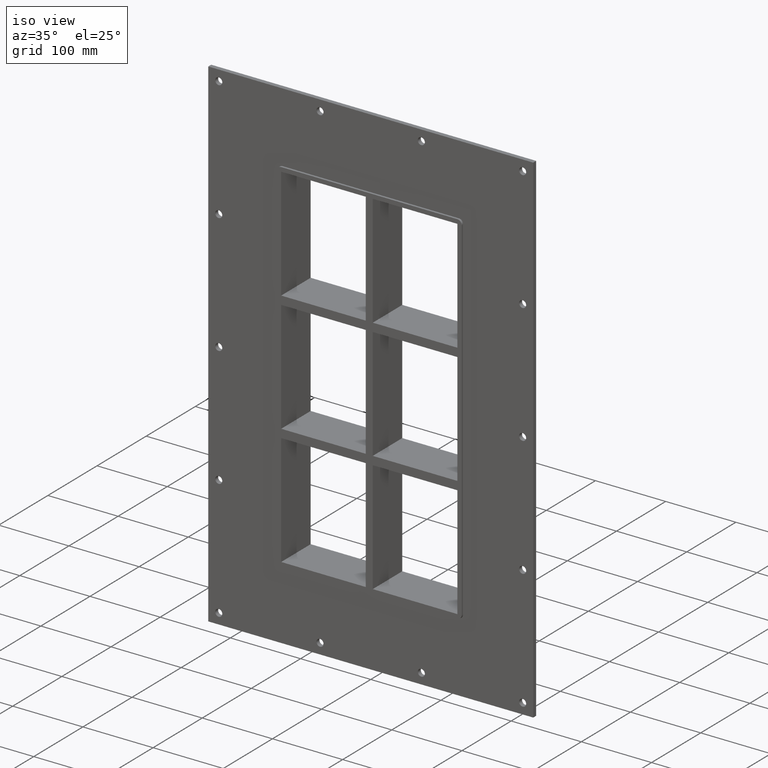
[diagram: clean part render]
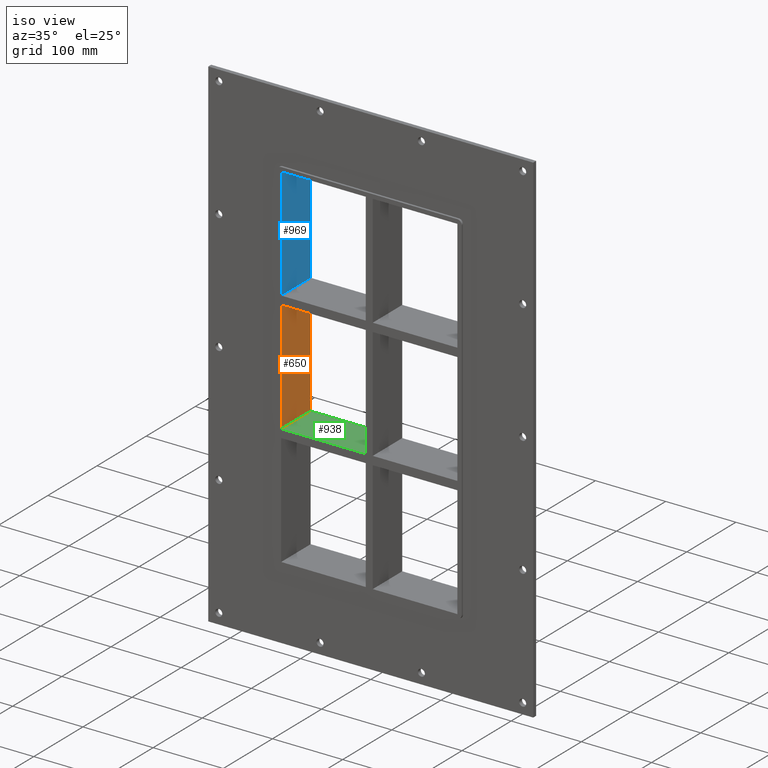
[diagram: same view with three faces highlighted in distinct colors, each labeled with its STEP entity id]
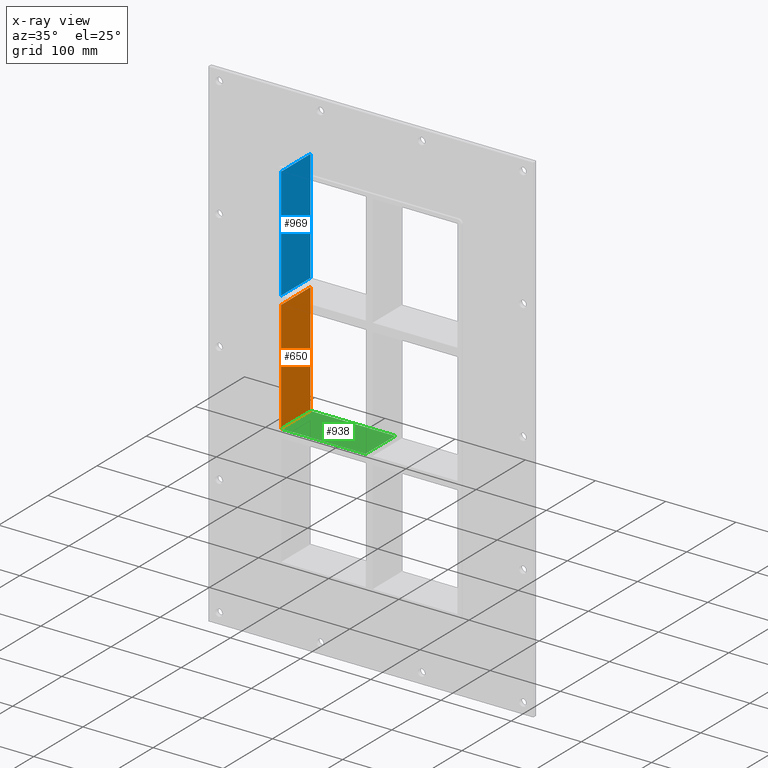
[diagram: x-ray of the same camera — body ghosted, the three highlighted faces saturated]
A machine part, iso view with three faces highlighted in distinct colors.
The next image is the same camera in x-ray (body ghosted, the three faces saturated) — at least one of them is partly hidden behind the body in this view.
Their STEP definitions:

[orange] entity #650 — the highlighted planar face has unit normal (-1, 0, 0).
#595=CARTESIAN_POINT('',(-125.4999999999997,-3.0,79.749999999990536));
#596=VERTEX_POINT('',#595);
#603=CARTESIAN_POINT('',(-125.4999999999997,57.0,79.749999999990536));
#604=VERTEX_POINT('',#603);
#605=CARTESIAN_POINT('',(-125.5,57.000000000000007,79.749999999990536));
#606=DIRECTION('',(0.0,-1.0,0.0));
#607=VECTOR('',#606,60.000000000000007);
#608=LINE('',#605,#607);
#609=EDGE_CURVE('',#604,#596,#608,.T.);
#620=CARTESIAN_POINT('',(-125.5,0.0,-251.25000000000003));
#621=DIRECTION('',(-1.0,0.0,0.0));
#622=DIRECTION('',(0.0,0.0,1.0));
#623=AXIS2_PLACEMENT_3D('',#620,#621,#622);
#624=PLANE('',#623);
#625=ORIENTED_EDGE('',*,*,#609,.T.);
#626=CARTESIAN_POINT('',(-125.4999999999997,-3.0,-79.749999999999943));
#627=VERTEX_POINT('',#626);
#628=CARTESIAN_POINT('',(-125.5,-3.0,-79.749999999999943));
#629=DIRECTION('',(0.0,0.0,1.0));
#630=VECTOR('',#629,159.49999999999051);
#631=LINE('',#628,#630);
#632=EDGE_CURVE('',#627,#596,#631,.T.);
#633=ORIENTED_EDGE('',*,*,#632,.F.);
#634=CARTESIAN_POINT('',(-125.4999999999997,57.0,-79.749999999999943));
#635=VERTEX_POINT('',#634);
#636=CARTESIAN_POINT('',(-125.5,-3.0,-79.749999999999929));
#637=DIRECTION('',(0.0,1.0,0.0));
#638=VECTOR('',#637,60.000000000000007);
#639=LINE('',#636,#638);
#640=EDGE_CURVE('',#627,#635,#639,.T.);
#641=ORIENTED_EDGE('',*,*,#640,.T.);
#642=CARTESIAN_POINT('',(-125.5,57.0,79.74999999999055));
#643=DIRECTION('',(0.0,0.0,-1.0));
#644=VECTOR('',#643,159.49999999999051);
#645=LINE('',#642,#644);
#646=EDGE_CURVE('',#604,#635,#645,.T.);
#647=ORIENTED_EDGE('',*,*,#646,.F.);
#648=EDGE_LOOP('',(#625,#633,#641,#647));
#649=FACE_OUTER_BOUND('',#648,.T.);
#650=ADVANCED_FACE('',(#649),#624,.F.);

[blue] entity #969 — the highlighted planar face has unit normal (-1, 0, 0).
#555=CARTESIAN_POINT('',(-125.4999999999997,57.0,91.750000000000085));
#556=VERTEX_POINT('',#555);
#563=CARTESIAN_POINT('',(-125.4999999999997,-3.0,91.750000000000085));
#564=VERTEX_POINT('',#563);
#565=CARTESIAN_POINT('',(-125.5,-3.0,91.750000000000085));
#566=DIRECTION('',(0.0,1.0,0.0));
#567=VECTOR('',#566,60.000000000000007);
#568=LINE('',#565,#567);
#569=EDGE_CURVE('',#564,#556,#568,.T.);
#939=CARTESIAN_POINT('',(-125.5,0.0,-251.25000000000003));
#940=DIRECTION('',(-1.0,0.0,0.0));
#941=DIRECTION('',(0.0,0.0,1.0));
#942=AXIS2_PLACEMENT_3D('',#939,#940,#941);
#943=PLANE('',#942);
#944=ORIENTED_EDGE('',*,*,#569,.T.);
#945=CARTESIAN_POINT('',(-125.5,57.0,251.24999999999997));
#946=VERTEX_POINT('',#945);
#947=CARTESIAN_POINT('',(-125.5,57.0,251.25));
#948=DIRECTION('',(0.0,0.0,-1.0));
#949=VECTOR('',#948,159.49999999999989);
#950=LINE('',#947,#949);
#951=EDGE_CURVE('',#946,#556,#950,.T.);
#952=ORIENTED_EDGE('',*,*,#951,.F.);
#953=CARTESIAN_POINT('',(-125.5,-3.0,251.24999999999997));
#954=VERTEX_POINT('',#953);
#955=CARTESIAN_POINT('',(-125.5,-3.0,251.25));
#956=DIRECTION('',(0.0,1.0,0.0));
#957=VECTOR('',#956,60.0);
#958=LINE('',#955,#957);
#959=EDGE_CURVE('',#954,#946,#958,.T.);
#960=ORIENTED_EDGE('',*,*,#959,.F.);
#961=CARTESIAN_POINT('',(-125.5,-3.0,91.750000000000099));
#962=DIRECTION('',(0.0,0.0,1.0));
#963=VECTOR('',#962,159.49999999999989);
#964=LINE('',#961,#963);
#965=EDGE_CURVE('',#564,#954,#964,.T.);
#966=ORIENTED_EDGE('',*,*,#965,.F.);
#967=EDGE_LOOP('',(#944,#952,#960,#966));
#968=FACE_OUTER_BOUND('',#967,.T.);
#969=ADVANCED_FACE('',(#968),#943,.F.);

[green] entity #938 — the highlighted planar face has unit normal (0, 0, 1).
#626=CARTESIAN_POINT('',(-125.4999999999997,-3.0,-79.749999999999943));
#627=VERTEX_POINT('',#626);
#634=CARTESIAN_POINT('',(-125.4999999999997,57.0,-79.749999999999943));
#635=VERTEX_POINT('',#634);
#636=CARTESIAN_POINT('',(-125.5,-3.0,-79.749999999999929));
#637=DIRECTION('',(0.0,1.0,0.0));
#638=VECTOR('',#637,60.000000000000007);
#639=LINE('',#636,#638);
#640=EDGE_CURVE('',#627,#635,#639,.T.);
#750=CARTESIAN_POINT('',(-5.000000000001332,57.0,-79.749999999999943));
#751=VERTEX_POINT('',#750);
#758=CARTESIAN_POINT('',(-5.000000000001332,-3.0,-79.749999999999943));
#759=VERTEX_POINT('',#758);
#760=CARTESIAN_POINT('',(-5.000000000001323,57.0,-79.749999999999929));
#761=DIRECTION('',(0.0,-1.0,0.0));
#762=VECTOR('',#761,60.0);
#763=LINE('',#760,#762);
#764=EDGE_CURVE('',#751,#759,#763,.T.);
#917=CARTESIAN_POINT('',(-125.4999999999997,-3.0,-79.749999999999943));
#918=DIRECTION('',(0.0,0.0,1.0));
#919=DIRECTION('',(1.0,0.0,0.0));
#920=AXIS2_PLACEMENT_3D('',#917,#918,#919);
#921=PLANE('',#920);
#922=ORIENTED_EDGE('',*,*,#764,.F.);
#923=CARTESIAN_POINT('',(-125.4999999999997,57.0,-79.749999999999943));
#924=DIRECTION('',(1.0,0.0,0.0));
#925=VECTOR('',#924,120.49999999999838);
#926=LINE('',#923,#925);
#927=EDGE_CURVE('',#635,#751,#926,.T.);
#928=ORIENTED_EDGE('',*,*,#927,.F.);
#929=ORIENTED_EDGE('',*,*,#640,.F.);
#930=CARTESIAN_POINT('',(-125.4999999999997,-3.0,-79.749999999999943));
#931=DIRECTION('',(1.0,0.0,0.0));
#932=VECTOR('',#931,120.49999999999838);
#933=LINE('',#930,#932);
#934=EDGE_CURVE('',#627,#759,#933,.T.);
#935=ORIENTED_EDGE('',*,*,#934,.T.);
#936=EDGE_LOOP('',(#922,#928,#929,#935));
#937=FACE_OUTER_BOUND('',#936,.T.);
#938=ADVANCED_FACE('',(#937),#921,.T.);